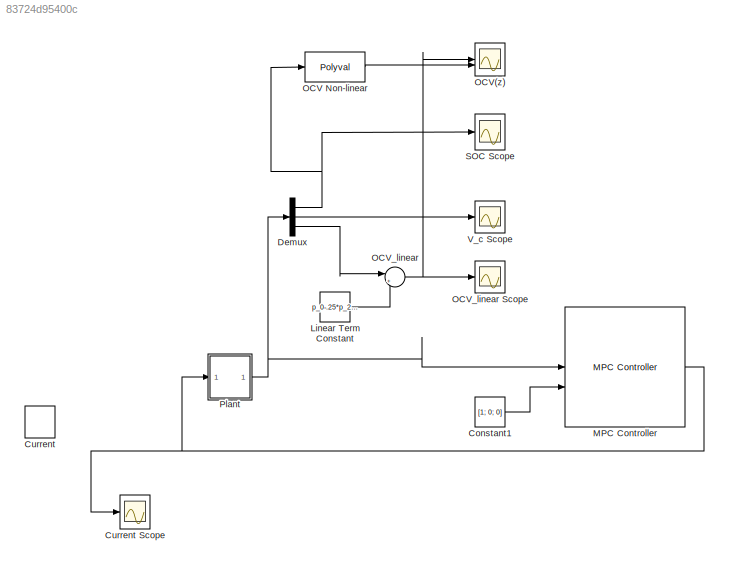
MODEL slx_83724d95400c
KIND model
CONFIG AbsTol = auto
CONFIG EnableMultiTasking = off
CONFIG FixedStep = auto
CONFIG MaxStep = auto
CONFIG MinStep = auto
CONFIG RelTol = 1e-3
CONFIG SampleTimeConstraint = Unconstrained
CONFIG SolverName = VariableStepAuto
CONFIG StartTime = 0.0
CONFIG StopTime = 600
WORKSPACE source: mxarray member
WORKSPACE A: Simulink.Parameter (value not decoded)
WORKSPACE B = 1
WORKSPACE C = 1
WORKSPACE D = 1
BLOCK [Constant] Constant1
  Value = [1; 0; 0]
BLOCK [DiscretePulseGenerator] Current
  Amplitude = -5
  Period = 40
  PulseType = Time based
  PulseWidth = 50
BLOCK [Scope] Current Scope
  Floating = off
  NumInputPorts = 1
  ScopeSpecificationString = Simulink.scopes.TimeScopeBlockCfg('CurrentConfiguration', extmgr.ConfigurationSet(extmgr.Configuration('Core','General UI',true),extmgr.Configuration('Core','Source UI',true),extmgr.Configuration('Sources','WiredSimulink',true),extmgr.Configuration('Visuals','Time Domain',true,'SerializedDisplays',{struct('MinYLimReal','-0.625','MaxYLimReal','5.625','YLabelReal','','MinYLimMag','0.00000','MaxYLimM...<+1354ch>
BLOCK [Demux] Demux
  Outputs = 3
BLOCK [Constant] Linear Term Constant
  Value = p_0-.25*p_2-.25*p_3
BLOCK [Reference] MPC Controller  REF=mpclib/MPC Controller  (lib defined in mdl_ae329e0e0455)
  SCDEnableBlockLinearizationSpecification = on
  SourceBlock = mpclib/MPC Controller
  SourceType = MPC
BLOCK [Polyval] OCV Non-linear
  Coefs = [p_3, p_2, p_1, p_0]
BLOCK [Scope] OCV(z)
  Floating = off
  NumInputPorts = 2
  ScopeSpecificationString = Simulink.scopes.TimeScopeBlockCfg('CurrentConfiguration', extmgr.ConfigurationSet(extmgr.Configuration('Core','General UI',true),extmgr.Configuration('Core','Source UI',true),extmgr.Configuration('Sources','WiredSimulink',true,'DataLoggingVariableName','ScopeData1'),extmgr.Configuration('Visuals','Time Domain',true,'SerializedDisplays',{struct('MinYLimReal','2.83381','MaxYLimReal','4.83381','YLabe...<+1605ch>
BLOCK [Sum] OCV_linear
  Inputs = |++
BLOCK [Scope] OCV_linear Scope
  Floating = off
  NumInputPorts = 1
  ScopeSpecificationString = Simulink.scopes.TimeScopeBlockCfg('CurrentConfiguration', extmgr.ConfigurationSet(extmgr.Configuration('Core','General UI',true),extmgr.Configuration('Core','Source UI',true),extmgr.Configuration('Sources','WiredSimulink',true,'DataLoggingVariableName','ScopeData2'),extmgr.Configuration('Visuals','Time Domain',true,'SerializedDisplays',{struct('MinYLimReal','3.81694','MaxYLimReal','3.98563','YLabe...<+1367ch>
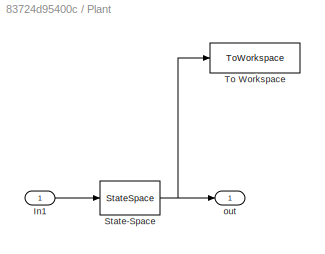
BLOCK [SubSystem] Plant
BLOCK [Inport] Plant/In1
BLOCK [StateSpace] Plant/State-Space
  A = A_mat
  B = B_mat
  C = C_mat
  D = D_dummy
  InitialCondition = x0
BLOCK [ToWorkspace] Plant/To Workspace
  FixptAsFi = on
  MaxDataPoints = inf
  SampleTime = -1
  SaveFormat = Timeseries
  VariableName = simout
BLOCK [Outport] Plant/out
BLOCK [Scope] SOC Scope
  Floating = off
  NumInputPorts = 1
  ScopeSpecificationString = Simulink.scopes.TimeScopeBlockCfg('CurrentConfiguration', extmgr.ConfigurationSet(extmgr.Configuration('Core','General UI',true),extmgr.Configuration('Core','Source UI',true),extmgr.Configuration('Sources','WiredSimulink',true,'DataLoggingVariableName','ScopeData1'),extmgr.Configuration('Visuals','Time Domain',true,'SerializedDisplays',{struct('MinYLimReal','0.43975','MaxYLimReal','1.04227','YLabe...<+1512ch>
BLOCK [Scope] V_c Scope
  Floating = off
  NumInputPorts = 1
  ScopeSpecificationString = Simulink.scopes.TimeScopeBlockCfg('CurrentConfiguration', extmgr.ConfigurationSet(extmgr.Configuration('Core','General UI',true),extmgr.Configuration('Core','Source UI',true),extmgr.Configuration('Sources','WiredSimulink',true,'DataLoggingVariableName','ScopeData1'),extmgr.Configuration('Visuals','Time Domain',true,'SerializedDisplays',{struct('MinYLimReal','-0.00313','MaxYLimReal','0.02813','YLab...<+1520ch>
LINE Constant1:1 -> MPC Controller:2
NET Demux:1 -> OCV Non-linear:1, SOC Scope:1
LINE Demux:2 -> V_c Scope:1
LINE Demux:3 -> OCV_linear:1
LINE Linear Term Constant:1 -> OCV_linear:2
NET MPC Controller:1 -> Current Scope:1, Plant:1
LINE OCV Non-linear:1 -> OCV(z):2
NET OCV_linear:1 -> OCV(z):1, OCV_linear Scope:1
LINE Plant/In1:1 -> Plant/State-Space:1
NET Plant/State-Space:1 -> Plant/To Workspace:1, Plant/out:1
NET Plant:1 -> Demux:1, MPC Controller:1
note: NET lines group one-source signal fan-out (src -> all destinations, sorted); 1:1 wires keep LINE
